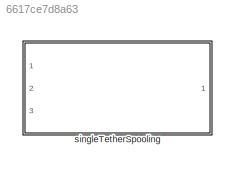
MODEL slx_6617ce7d8a63
KIND library
CONFIG AbsTol = auto
CONFIG EnableMultiTasking = off
CONFIG FixedStep = auto
CONFIG MaxStep = auto
CONFIG MinStep = auto
CONFIG RelTol = 1e-3
CONFIG SampleTimeConstraint = Unconstrained
CONFIG Solver = VariableStepAuto
CONFIG SolverName = VariableStepAuto
CONFIG StartTime = 0.0
CONFIG StopTime = 10.0
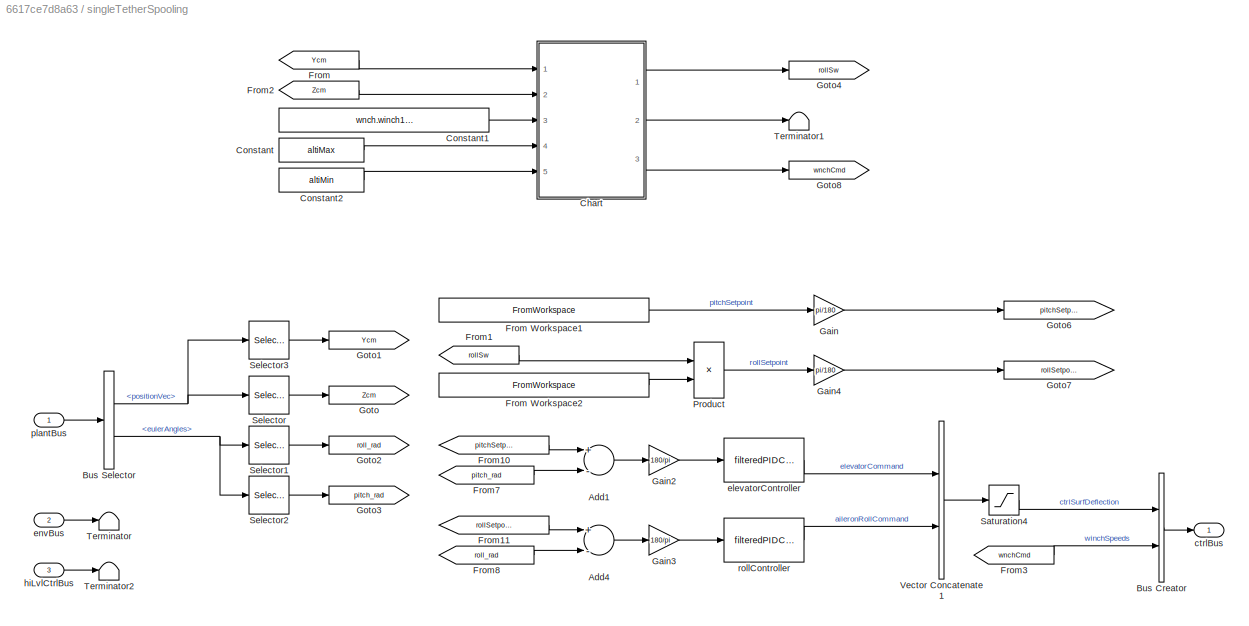
BLOCK [SubSystem] singleTetherSpooling
  InitFcn = initializeBussesFromBlock(gcb)
  LoadFcn = initializeBussesFromBlock(gcb)
  Ports = [3, 1]
  RequestExecContextInheritance = off
  StartFcn = initializeBussesFromBlock(gcb)
BLOCK [Sum] singleTetherSpooling/Add1
  InputSameDT = off
  Inputs = +-
  OutDataTypeStr = Inherit: Inherit via internal rule
  Ports = [2, 1]
  SaturateOnIntegerOverflow = off
BLOCK [Sum] singleTetherSpooling/Add4
  InputSameDT = off
  Inputs = +-
  OutDataTypeStr = Inherit: Inherit via internal rule
  Ports = [2, 1]
  SaturateOnIntegerOverflow = off
BLOCK [BusCreator] singleTetherSpooling/Bus Creator
  DisplayOption = bar
  InheritFromInputs = on
  Inputs = 2
  OutDataTypeStr = Bus: fltCtrlBus
  Ports = [2, 1]
BLOCK [BusSelector] singleTetherSpooling/Bus Selector
  OutputAsBus = off
  OutputSignals = positionVec,eulerAngles
  Ports = [1, 2]
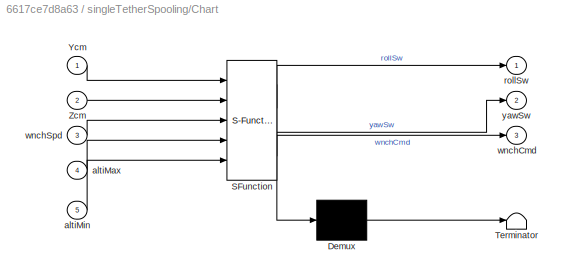
BLOCK [SubSystem] singleTetherSpooling/Chart
  ErrorFcn = Stateflow.Translate.translate
  PermitHierarchicalResolution = ExplicitOnly
  Ports = [5, 3]
  RequestExecContextInheritance = off
  SFBlockType = Chart
  TreatAsAtomicUnit = on
BLOCK [Demux] singleTetherSpooling/Chart/ Demux 
  Outputs = 1
  Ports = [1, 1]
BLOCK [S-Function] singleTetherSpooling/Chart/ SFunction 
  EnableBusSupport = off
  FunctionName = sf_sfun
  PortCounts = [5 4]
  Ports = [5, 4]
  SFcnIsStateOwnerBlock = off
  SFunctionDeploymentMode = off
  Tag = Stateflow S-Function singleTetherSpooling 3
BLOCK [Terminator] singleTetherSpooling/Chart/ Terminator 
BLOCK [Inport] singleTetherSpooling/Chart/Ycm
  IconDisplay = Port number
BLOCK [Inport] singleTetherSpooling/Chart/Zcm
  IconDisplay = Port number
  Port = 2
BLOCK [Inport] singleTetherSpooling/Chart/altiMax
  IconDisplay = Port number
  Port = 4
BLOCK [Inport] singleTetherSpooling/Chart/altiMin
  IconDisplay = Port number
  Port = 5
BLOCK [Outport] singleTetherSpooling/Chart/rollSw
  IconDisplay = Port number
BLOCK [Outport] singleTetherSpooling/Chart/wnchCmd
  IconDisplay = Port number
  Port = 3
BLOCK [Inport] singleTetherSpooling/Chart/wnchSpd
  IconDisplay = Port number
  Port = 3
BLOCK [Outport] singleTetherSpooling/Chart/yawSw
  IconDisplay = Port number
  Port = 2
BLOCK [Constant] singleTetherSpooling/Constant
  Value = altiMax
BLOCK [Constant] singleTetherSpooling/Constant1
  Value = wnch.winch1.maxSpeed.Value
  VectorParams1D = off
BLOCK [Constant] singleTetherSpooling/Constant2
  Value = altiMin
BLOCK [From] singleTetherSpooling/From
  GotoTag = Ycm
BLOCK [FromWorkspace] singleTetherSpooling/From Workspace1
  SampleTime = 0
  VariableName = ctrl.pitchSP.Value
  ZeroCross = on
BLOCK [FromWorkspace] singleTetherSpooling/From Workspace2
  SampleTime = 0
  VariableName = ctrl.rollSP.Value
  ZeroCross = on
BLOCK [From] singleTetherSpooling/From1
  GotoTag = rollSw
BLOCK [From] singleTetherSpooling/From10
  GotoTag = pitchSetpoint_rad
BLOCK [From] singleTetherSpooling/From11
  GotoTag = rollSetpoint_rad
BLOCK [From] singleTetherSpooling/From2
  GotoTag = Zcm
BLOCK [From] singleTetherSpooling/From3
  GotoTag = wnchCmd
BLOCK [From] singleTetherSpooling/From7
  GotoTag = pitch_rad
BLOCK [From] singleTetherSpooling/From8
  GotoTag = roll_rad
BLOCK [Gain] singleTetherSpooling/Gain
  Gain = pi/180
  OutDataTypeStr = Inherit: Inherit via internal rule
  ParamDataTypeStr = Inherit: Inherit via internal rule
  SaturateOnIntegerOverflow = off
BLOCK [Gain] singleTetherSpooling/Gain2
  Gain = 180/pi
  OutDataTypeStr = Inherit: Inherit via internal rule
  ParamDataTypeStr = Inherit: Inherit via internal rule
  SaturateOnIntegerOverflow = off
BLOCK [Gain] singleTetherSpooling/Gain3
  Gain = 180/pi
  OutDataTypeStr = Inherit: Inherit via internal rule
  ParamDataTypeStr = Inherit: Inherit via internal rule
  SaturateOnIntegerOverflow = off
BLOCK [Gain] singleTetherSpooling/Gain4
  Gain = pi/180
  OutDataTypeStr = Inherit: Inherit via internal rule
  ParamDataTypeStr = Inherit: Inherit via internal rule
  SaturateOnIntegerOverflow = off
BLOCK [Goto] singleTetherSpooling/Goto
  GotoTag = Zcm
BLOCK [Goto] singleTetherSpooling/Goto1
  GotoTag = Ycm
BLOCK [Goto] singleTetherSpooling/Goto2
  GotoTag = roll_rad
BLOCK [Goto] singleTetherSpooling/Goto3
  GotoTag = pitch_rad
BLOCK [Goto] singleTetherSpooling/Goto4
  GotoTag = rollSw
BLOCK [Goto] singleTetherSpooling/Goto6
  GotoTag = pitchSetpoint_rad
BLOCK [Goto] singleTetherSpooling/Goto7
  GotoTag = rollSetpoint_rad
BLOCK [Goto] singleTetherSpooling/Goto8
  GotoTag = wnchCmd
BLOCK [Product] singleTetherSpooling/Product
  InputSameDT = off
  OutDataTypeStr = Inherit: Inherit via internal rule
  Ports = [2, 1]
  RndMeth = Floor
  SaturateOnIntegerOverflow = off
BLOCK [Saturate] singleTetherSpooling/Saturation4
  InputPortMap = u0
  LowerLimit = ctrl.outputSat.lowerLimit.Value
  Ports = [1, 1]
  UpperLimit = ctrl.outputSat.upperLimit.Value
BLOCK [Selector] singleTetherSpooling/Selector
  IndexOptions = Index vector (dialog)
  Indices = 3
  InputPortWidth = 3
  OutputSizes = 1
  Ports = [1, 1]
BLOCK [Selector] singleTetherSpooling/Selector1
  IndexOptions = Index vector (dialog)
  Indices = 1
  InputPortWidth = 3
  OutputSizes = 1
  Ports = [1, 1]
BLOCK [Selector] singleTetherSpooling/Selector2
  IndexOptions = Index vector (dialog)
  Indices = 2
  InputPortWidth = 3
  OutputSizes = 1
  Ports = [1, 1]
BLOCK [Selector] singleTetherSpooling/Selector3
  IndexOptions = Index vector (dialog)
  Indices = 2
  InputPortWidth = 3
  OutputSizes = 1
  Ports = [1, 1]
BLOCK [Terminator] singleTetherSpooling/Terminator
BLOCK [Terminator] singleTetherSpooling/Terminator1
BLOCK [Terminator] singleTetherSpooling/Terminator2
BLOCK [Concatenate] singleTetherSpooling/Vector Concatenate1
  Ports = [2, 1]
BLOCK [Outport] singleTetherSpooling/ctrlBus
  IconDisplay = Port number
  OutDataTypeStr = Bus: fltCtrlBus
BLOCK [Reference] singleTetherSpooling/elevatorController  REF=filteredPIDController_ul/filteredPIDController
  Ports = [1, 1]
  SourceBlock = filteredPIDController_ul/filteredPIDController
BLOCK [Inport] singleTetherSpooling/envBus
  IconDisplay = Port number
  OutDataTypeStr = Bus: envBus
  Port = 2
BLOCK [Inport] singleTetherSpooling/hiLvlCtrlBus
  IconDisplay = Port number
  OutDataTypeStr = Bus: hiLvlCtrlBus
  Port = 3
BLOCK [Inport] singleTetherSpooling/plantBus
  IconDisplay = Port number
  OutDataTypeStr = Bus: plantBus
BLOCK [Reference] singleTetherSpooling/rollController  REF=filteredPIDController_ul/filteredPIDController
  Ports = [1, 1]
  SourceBlock = filteredPIDController_ul/filteredPIDController
LINE singleTetherSpooling/Add1:1 -> singleTetherSpooling/Gain2:1
LINE singleTetherSpooling/Add4:1 -> singleTetherSpooling/Gain3:1
LINE singleTetherSpooling/Bus Creator:1 -> singleTetherSpooling/ctrlBus:1
NET singleTetherSpooling/Bus Selector:1 -> singleTetherSpooling/Selector3:1, singleTetherSpooling/Selector:1
NET singleTetherSpooling/Bus Selector:2 -> singleTetherSpooling/Selector1:1, singleTetherSpooling/Selector2:1
LINE singleTetherSpooling/Chart:1 -> singleTetherSpooling/Goto4:1
LINE singleTetherSpooling/Chart:2 -> singleTetherSpooling/Terminator1:1
LINE singleTetherSpooling/Chart:3 -> singleTetherSpooling/Goto8:1
LINE singleTetherSpooling/Constant1:1 -> singleTetherSpooling/Chart:3
LINE singleTetherSpooling/Constant2:1 -> singleTetherSpooling/Chart:5
LINE singleTetherSpooling/Constant:1 -> singleTetherSpooling/Chart:4
LINE singleTetherSpooling/From Workspace1:1 -> singleTetherSpooling/Gain:1
LINE singleTetherSpooling/From Workspace2:1 -> singleTetherSpooling/Product:2
LINE singleTetherSpooling/From10:1 -> singleTetherSpooling/Add1:1
LINE singleTetherSpooling/From11:1 -> singleTetherSpooling/Add4:1
LINE singleTetherSpooling/From1:1 -> singleTetherSpooling/Product:1
LINE singleTetherSpooling/From2:1 -> singleTetherSpooling/Chart:2
LINE singleTetherSpooling/From3:1 -> singleTetherSpooling/Bus Creator:2
LINE singleTetherSpooling/From7:1 -> singleTetherSpooling/Add1:2
LINE singleTetherSpooling/From8:1 -> singleTetherSpooling/Add4:2
LINE singleTetherSpooling/From:1 -> singleTetherSpooling/Chart:1
LINE singleTetherSpooling/Gain2:1 -> singleTetherSpooling/elevatorController:1
LINE singleTetherSpooling/Gain3:1 -> singleTetherSpooling/rollController:1
LINE singleTetherSpooling/Gain4:1 -> singleTetherSpooling/Goto7:1
LINE singleTetherSpooling/Gain:1 -> singleTetherSpooling/Goto6:1
LINE singleTetherSpooling/Product:1 -> singleTetherSpooling/Gain4:1
LINE singleTetherSpooling/Saturation4:1 -> singleTetherSpooling/Bus Creator:1
LINE singleTetherSpooling/Selector1:1 -> singleTetherSpooling/Goto2:1
LINE singleTetherSpooling/Selector2:1 -> singleTetherSpooling/Goto3:1
LINE singleTetherSpooling/Selector3:1 -> singleTetherSpooling/Goto1:1
LINE singleTetherSpooling/Selector:1 -> singleTetherSpooling/Goto:1
LINE singleTetherSpooling/Vector Concatenate1:1 -> singleTetherSpooling/Saturation4:1
LINE singleTetherSpooling/elevatorController:1 -> singleTetherSpooling/Vector Concatenate1:1
LINE singleTetherSpooling/envBus:1 -> singleTetherSpooling/Terminator:1
LINE singleTetherSpooling/hiLvlCtrlBus:1 -> singleTetherSpooling/Terminator2:1
LINE singleTetherSpooling/plantBus:1 -> singleTetherSpooling/Bus Selector:1
LINE singleTetherSpooling/rollController:1 -> singleTetherSpooling/Vector Concatenate1:2
note: NET lines group one-source signal fan-out (src -> all destinations, sorted); 1:1 wires keep LINE
CHART singleTetherSpooling/Chart states=2 transitions=3
  STATE_LABEL 'SpoolOut\nentry:\nwnchCmd = wnchSpd/4;\nrollSw = 1;\nyawSw = 0;\nduring:\nwnchCmd = wnchSpd/4;\nrollSw = 1;\nyawSw = 0;'
  STATE_LABEL 'Spoolin\nentry:\nwnchCmd = -wnchSpd;\nrollSw = 0;\nyawSw = 1;\nduring:\nwnchCmd = -wnchSpd;\nrollSw = 0;\nyawSw = 1;'
